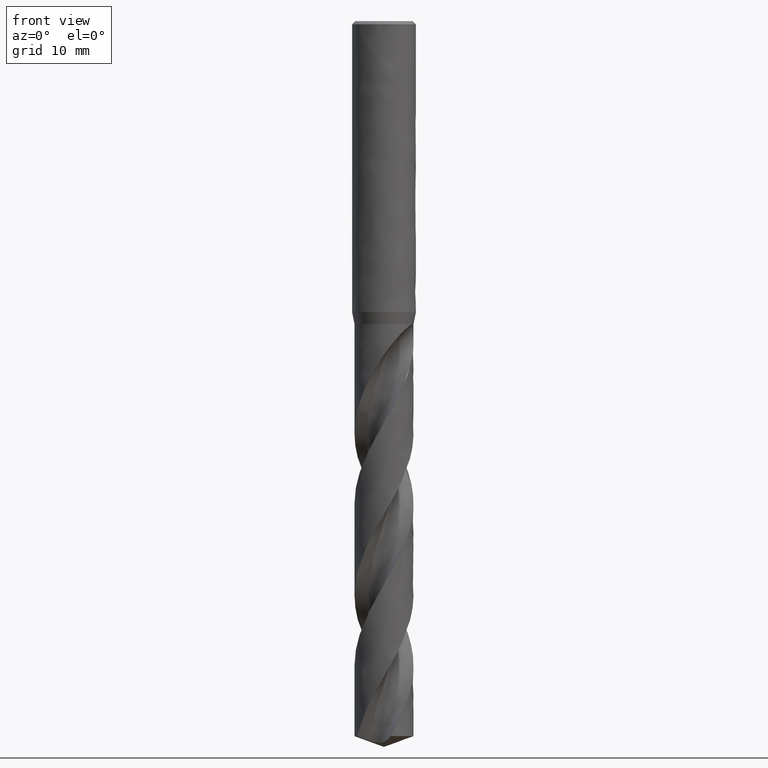
[diagram: clean part render]
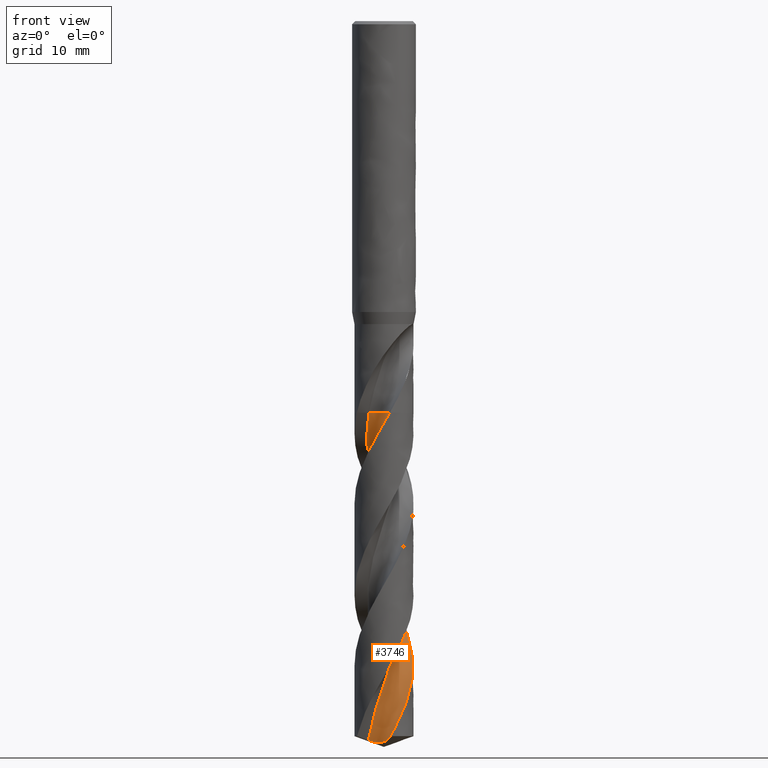
[diagram: same view with one face highlighted and labeled with its STEP entity id]
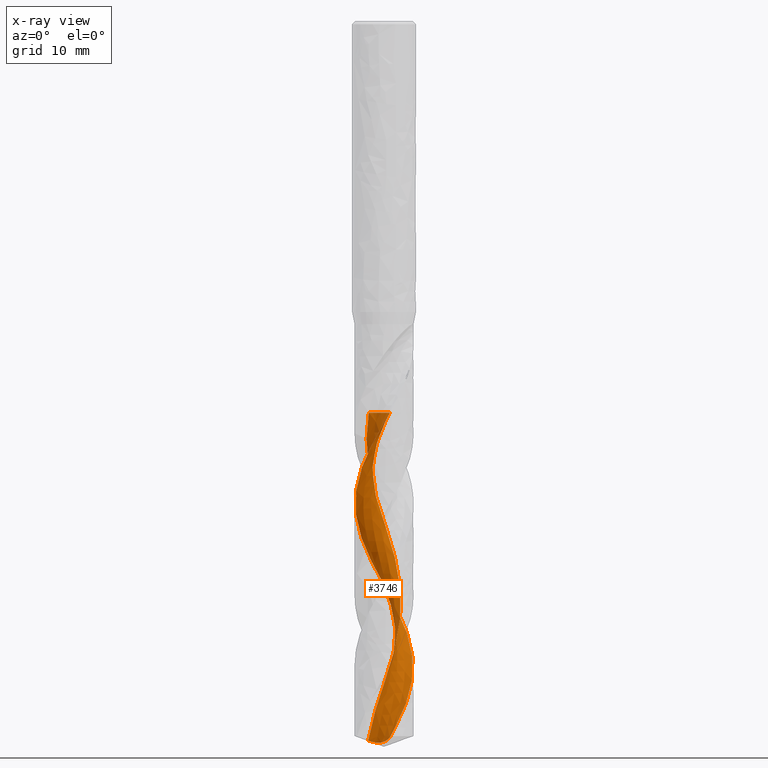
[diagram: x-ray of the same camera — body ghosted, the highlighted face saturated]
A machine part, front view. The second image highlights one B-rep face of the part: STEP entity #3746.
The next image is the same camera in x-ray: the body ghosted, the highlighted face saturated — about 0% of this face is hidden behind the body in this view.
In plain terms, the highlighted face is a freeform B-spline surface patch.
Its self-contained STEP definition (entity closure, byte-faithful):
#1965 = VERTEX_POINT('', #1966);
#1966 = CARTESIAN_POINT('', (-1.90183891064219, -1.13586932365929, -49.1));
#1972 = EDGE_CURVE('', #1965, #1973, #1975, .T.);
#1973 = VERTEX_POINT('', #1974);
#1974 = CARTESIAN_POINT('', (0.72714358249177, -3.62784539505765, -49.1));
#1975 = B_SPLINE_CURVE_WITH_KNOTS('', 3, (#1976, #1977, #1978, #1979, #1980, #1981, #1982, #1983, #1984, #1985, #1986, #1987, #1988, #1989, #1990, #1991, #1992, #1993, #1994, #1995, #1996, #1997, #1998, #1999, #2000, #2001, #2002, #2003, #2004, #2005, #2006, #2007, #2008, #2009, #2010, #2011, #2012, #2013, #2014, #2015, #2016, #2017, #2018, #2019, #2020, #2021, #2022, #2023, #2024, #2025, #2026, #2027, #2028, #2029, #2030, #2031, #2032, #2033, #2034, #2035, #2036, #2037, #2038, #2039, #2040, #2041, #2042, #2043, #2044, #2045, #2046, #2047, #2048), .UNSPECIFIED., .F., .U., (4, 3, 3, 3, 3, 3, 3, 3, 3, 3, 3, 3, 3, 3, 3, 3, 3, 3, 3, 3, 3, 3, 3, 3, 4), (0., 0.198131175392014, 0.396054144535818, 0.593773612337969, 0.791293336766626, 0.988616195694019, 1.1857442372197, 1.38267871536812, 1.5794201124808, 1.77596814913478, 1.97232178198284, 2.10329023730551, 2.12922146834169, 2.15518577085952, 2.353290731999, 2.55118812703353, 2.74888253870221, 2.94637761210929, 3.14367611938441, 3.34078000809429, 3.53769043522236, 3.73440778797182, 3.93093169216719, 4.12726100859794, 4.23516525426969), .UNSPECIFIED.);
#1976 = CARTESIAN_POINT('', (-1.90183891064219, -1.13586932365929, -49.1));
#1977 = CARTESIAN_POINT('', (-1.83705280506126, -1.12304223697551, -49.1));
#1978 = CARTESIAN_POINT('', (-1.77162879221972, -1.11309902186006, -49.1));
#1979 = CARTESIAN_POINT('', (-1.705957085298, -1.10609898335135, -49.1));
#1980 = CARTESIAN_POINT('', (-1.64035438952349, -1.09910630083674, -49.1));
#1981 = CARTESIAN_POINT('', (-1.57437430080287, -1.0950367198774, -49.1));
#1982 = CARTESIAN_POINT('', (-1.50840952354241, -1.09391446205907, -49.1));
#1983 = CARTESIAN_POINT('', (-1.44251257024767, -1.09279335812891, -49.1));
#1984 = CARTESIAN_POINT('', (-1.37650036249361, -1.09461128689216, -49.1));
#1985 = CARTESIAN_POINT('', (-1.31076498953027, -1.09935745049266, -49.1));
#1986 = CARTESIAN_POINT('', (-1.24509602482354, -1.10409881934665, -49.1));
#1987 = CARTESIAN_POINT('', (-1.17957351544245, -1.11177187100981, -49.1));
#1988 = CARTESIAN_POINT('', (-1.11458585723406, -1.12233112216003, -49.1));
#1989 = CARTESIAN_POINT('', (-1.04966297143231, -1.13287984903336, -49.1));
#1990 = CARTESIAN_POINT('', (-0.985145780865046, -1.14632982551928, -49.1));
#1991 = CARTESIAN_POINT('', (-0.921415961347195, -1.16260148320059, -49.1));
#1992 = CARTESIAN_POINT('', (-0.857749062455559, -1.17885707582949, -49.1));
#1993 = CARTESIAN_POINT('', (-0.794742615462946, -1.19796077750074, -49.1));
#1994 = CARTESIAN_POINT('', (-0.732768624247368, -1.21979979577093, -49.1));
#1995 = CARTESIAN_POINT('', (-0.670855486347987, -1.24161736993759, -49.1));
#1996 = CARTESIAN_POINT('', (-0.609851104028112, -1.26620775625234, -49.1));
#1997 = CARTESIAN_POINT('', (-0.550114954585282, -1.2934260522462, -49.1));
#1998 = CARTESIAN_POINT('', (-0.490437372426931, -1.32061766252799, -49.1));
#1999 = CARTESIAN_POINT('', (-0.431908485852878, -1.35048535336914, -49.1));
#2000 = CARTESIAN_POINT('', (-0.374872509979698, -1.3828534694431, -49.1));
#2001 = CARTESIAN_POINT('', (-0.317892589937263, -1.41518977363678, -49.1));
#2002 = CARTESIAN_POINT('', (-0.262291105066224, -1.45008487842868, -49.1));
#2003 = CARTESIAN_POINT('', (-0.208394412596436, -1.48733396429351, -49.1));
#2004 = CARTESIAN_POINT('', (-0.154551028835915, -1.52454620743946, -49.1));
#2005 = CARTESIAN_POINT('', (-0.102303870896427, -1.56418046668665, -49.1));
#2006 = CARTESIAN_POINT('', (-0.0519590020670209, -1.60600456497086, -49.1));
#2007 = CARTESIAN_POINT('', (-0.0183788252789887, -1.63390136254009, -49.1));
#2008 = CARTESIAN_POINT('', (0.0143923960344724, -1.66280162208258, -49.1));
#2009 = CARTESIAN_POINT('', (0.0462691847600613, -1.69262996310715, -49.1));
#2010 = CARTESIAN_POINT('', (0.0525806616046054, -1.69853585548886, -49.1));
#2011 = CARTESIAN_POINT('', (0.0588577542345861, -1.70447870913471, -49.1));
#2012 = CARTESIAN_POINT('', (0.0650998204049517, -1.71045791599752, -49.1));
#2013 = CARTESIAN_POINT('', (0.0713498474151432, -1.71644474846167, -49.1));
#2014 = CARTESIAN_POINT('', (0.077564972130027, -1.72246823150455, -49.1));
#2015 = CARTESIAN_POINT('', (0.0837445570218338, -1.72852774725639, -49.1));
#2016 = CARTESIAN_POINT('', (0.130894154974988, -1.77476123000522, -49.1));
#2017 = CARTESIAN_POINT('', (0.176023760110291, -1.82314846383146, -49.1));
#2018 = CARTESIAN_POINT('', (0.218864273769271, -1.87340092549918, -49.1));
#2019 = CARTESIAN_POINT('', (0.261659900927163, -1.92360073473622, -49.1));
#2020 = CARTESIAN_POINT('', (0.302256166961163, -1.97576147737417, -49.1));
#2021 = CARTESIAN_POINT('', (0.340411510828305, -2.02957277995692, -49.1));
#2022 = CARTESIAN_POINT('', (0.378527718757744, -2.08332888828451, -49.1));
#2023 = CARTESIAN_POINT('', (0.41428350385439, -2.13883862330547, -49.1));
#2024 = CARTESIAN_POINT('', (0.447466543099706, -2.19577236019223, -49.1));
#2025 = CARTESIAN_POINT('', (0.480616123385299, -2.25264868993207, -49.1));
#2026 = CARTESIAN_POINT('', (0.511263669896952, -2.31105855486791, -49.1));
#2027 = CARTESIAN_POINT('', (0.539227559352313, -2.37065580685417, -49.1));
#2028 = CARTESIAN_POINT('', (0.567163616449682, -2.43019374191117, -49.1));
#2029 = CARTESIAN_POINT('', (0.592476468653099, -2.49103413198755, -49.1));
#2030 = CARTESIAN_POINT('', (0.615016405126227, -2.55281714147063, -49.1));
#2031 = CARTESIAN_POINT('', (0.637534107826999, -2.61453920715424, -49.1));
#2032 = CARTESIAN_POINT('', (0.657328700556203, -2.6773235327564, -49.1));
#2033 = CARTESIAN_POINT('', (0.674283340293188, -2.74079951654997, -49.1));
#2034 = CARTESIAN_POINT('', (0.691221338697301, -2.80421319734023, -49.1));
#2035 = CARTESIAN_POINT('', (0.705358245133915, -2.86844176460755, -49.1));
#2036 = CARTESIAN_POINT('', (0.71661077611817, -2.93310683437287, -49.1));
#2037 = CARTESIAN_POINT('', (0.727852273784082, -2.99770849882064, -49.1));
#2038 = CARTESIAN_POINT('', (0.736237103467275, -3.06287248209454, -49.1));
#2039 = CARTESIAN_POINT('', (0.741715965054309, -3.12821564084054, -49.1));
#2040 = CARTESIAN_POINT('', (0.747189438820506, -3.19349454221726, -49.1));
#2041 = CARTESIAN_POINT('', (0.749773379779972, -3.25908001661995, -49.1));
#2042 = CARTESIAN_POINT('', (0.749452625009428, -3.32458719940473, -49.1));
#2043 = CARTESIAN_POINT('', (0.749132187833602, -3.39002952037885, -49.1));
#2044 = CARTESIAN_POINT('', (0.745912189610335, -3.45552152259136, -49.1));
#2045 = CARTESIAN_POINT('', (0.739811488389775, -3.52067964947573, -49.1));
#2046 = CARTESIAN_POINT('', (0.736458491622705, -3.55649110473195, -49.1));
#2047 = CARTESIAN_POINT('', (0.732233210238253, -3.59223410004744, -49.1));
#2048 = CARTESIAN_POINT('', (0.727143494629635, -3.62784538250002, -49.1));
#3644 = EDGE_CURVE('', #1973, #3645, #3647, .T.);
#3645 = VERTEX_POINT('', #3646);
#3646 = CARTESIAN_POINT('', (-0.250700221443543, -3.69149690491109, -50.8047274931118));
#3647 = B_SPLINE_CURVE_WITH_KNOTS('', 3, (#3648, #3649, #3650, #3651, #3652, #3653, #3654, #3655, #3656, #3657, #3658, #3659, #3660, #3661, #3662, #3663, #3664, #3665, #3666), .UNSPECIFIED., .F., .U., (4, 3, 3, 3, 3, 3, 4), (4.43471449933253, 4.82439352692806, 5.4881293337976, 5.78341993079446, 5.87097239223266, 5.92935237540858, 6.4023368117242), .UNSPECIFIED.);
#3648 = CARTESIAN_POINT('', (0.72714358249177, -3.62784539505765, -49.1));
#3649 = CARTESIAN_POINT('', (0.663521049296479, -3.64059751420194, -49.2125244443034));
#3650 = CARTESIAN_POINT('', (0.599551793029408, -3.65167729280187, -49.3250826453598));
#3651 = CARTESIAN_POINT('', (0.535354611803831, -3.66106479587819, -49.4376117107044));
#3652 = CARTESIAN_POINT('', (0.426008291211655, -3.67705442192326, -49.6292811737587));
#3653 = CARTESIAN_POINT('', (0.31591837745099, -3.68814406172143, -49.8209990337498));
#3654 = CARTESIAN_POINT('', (0.205585509098997, -3.69428404409413, -50.0126717438922));
#3655 = CARTESIAN_POINT('', (0.156499324163911, -3.69701567171105, -50.0979453548985));
#3656 = CARTESIAN_POINT('', (0.107357422287585, -3.69876885430508, -50.1832238632673));
#3657 = CARTESIAN_POINT('', (0.0582040330285359, -3.69954217309915, -50.2684990083998));
#3658 = CARTESIAN_POINT('', (0.043630252957559, -3.69977145897749, -50.293782742226));
#3659 = CARTESIAN_POINT('', (0.0290551830907759, -3.69991462555224, -50.3190666602561));
#3660 = CARTESIAN_POINT('', (0.0144799717314964, -3.6999716661643, -50.344350544332));
#3661 = CARTESIAN_POINT('', (0.00476122048267163, -3.70000970084566, -50.3612098387794));
#3662 = CARTESIAN_POINT('', (-0.00495764072340317, -3.70000944256536, -50.3780691997148));
#3663 = CARTESIAN_POINT('', (-0.0146762717132745, -3.69997089272991, -50.3949285623163));
#3664 = CARTESIAN_POINT('', (-0.0934149240806846, -3.69965856869008, -50.5315201761349));
#3665 = CARTESIAN_POINT('', (-0.1721495020004, -3.69683151124185, -50.6681314890017));
#3666 = CARTESIAN_POINT('', (-0.250700221443463, -3.69149690491109, -50.8047274931116));
#3746 = ADVANCED_FACE('', (#3747), #4015, .T.);
#3747 = FACE_OUTER_BOUND('', #3748, .T.);
#3748 = EDGE_LOOP('', (#3749, #3750, #3819, #3939, #3951, #4014));
#3749 = ORIENTED_EDGE('', *, *, #1972, .F.);
#3750 = ORIENTED_EDGE('', *, *, #3751, .F.);
#3751 = EDGE_CURVE('', #3752, #1965, #3754, .T.);
#3752 = VERTEX_POINT('', #3753);
#3753 = CARTESIAN_POINT('', (-1.96964819562362, -1.01333385685226, -90.1937948789721));
#3754 = B_SPLINE_CURVE_WITH_KNOTS('', 3, (#3755, #3756, #3757, #3758, #3759, #3760, #3761, #3762, #3763, #3764, #3765, #3766, #3767, #3768, #3769, #3770, #3771, #3772, #3773, #3774, #3775, #3776, #3777, #3778, #3779, #3780, #3781, #3782, #3783, #3784, #3785, #3786, #3787, #3788, #3789, #3790, #3791, #3792, #3793, #3794, #3795, #3796, #3797, #3798, #3799, #3800, #3801, #3802, #3803, #3804, #3805, #3806, #3807, #3808, #3809, #3810, #3811, #3812, #3813, #3814, #3815, #3816, #3817, #3818), .UNSPECIFIED., .F., .U., (4, 1, 1, 1, 1, 1, 1, 1, 1, 1, 1, 1, 1, 1, 1, 1, 1, 1, 1, 1, 1, 1, 1, 1, 1, 1, 1, 1, 1, 1, 1, 1, 1, 1, 1, 1, 1, 1, 1, 1, 1, 1, 1, 1, 1, 1, 1, 1, 1, 1, 1, 1, 1, 1, 1, 1, 1, 1, 1, 1, 1, 4), (0.856205121027864, 1.36076923076923, 2.04115384615385, 2.72153846153846, 3.40192307692308, 4.08230769230769, 4.76269230769231, 5.44307692307692, 6.12346153846154, 6.80384615384615, 7.48423076923077, 8.16461538461538, 8.845, 9.52538461538462, 10.2057692307692, 10.8861538461538, 11.5665384615385, 12.2469230769231, 12.9273076923077, 13.6076923076923, 14.2880769230769, 14.9684615384615, 15.6488461538462, 16.3292307692308, 17.0096153846154, 17.69, 18.3703846153846, 19.0507692307692, 19.7311538461538, 20.4115384615385, 21.0919230769231, 21.7723076923077, 22.4526923076923, 23.1330769230769, 23.8134615384615, 24.4938461538462, 25.1742307692308, 25.8546153846154, 26.535, 27.2153846153846, 27.8957692307692, 28.5761538461538, 29.2565384615385, 29.9369230769231, 30.6173076923077, 31.2976923076923, 31.9780769230769, 32.6584615384615, 33.3388461538462, 34.0192307692308, 34.6996153846154, 35.38, 36.0603846153846, 36.7407692307692, 37.4211538461539, 38.1015384615385, 38.7819230769231, 39.4623076923077, 40.1426923076923, 40.8230769230769, 41.5034615384615, 41.95), .UNSPECIFIED.);
#3755 = CARTESIAN_POINT('', (-1.96964819562362, -1.01333385685226, -90.1937948789721));
#3756 = CARTESIAN_POINT('', (-1.94200330542687, -1.06381329460173, -90.0256068423917));
#3757 = CARTESIAN_POINT('', (-1.8725677050328, -1.17973516900651, -89.6306239340164));
#3758 = CARTESIAN_POINT('', (-1.74736486689418, -1.3512473719814, -89.0088461538462));
#3759 = CARTESIAN_POINT('', (-1.59197557702663, -1.52320136039059, -88.3284615384616));
#3760 = CARTESIAN_POINT('', (-1.41996403025922, -1.67765990639244, -87.6480769230769));
#3761 = CARTESIAN_POINT('', (-1.23326405044194, -1.81304916863214, -86.9676923076923));
#3762 = CARTESIAN_POINT('', (-1.03395392572099, -1.92800445844749, -86.2873076923077));
#3763 = CARTESIAN_POINT('', (-0.824235439556281, -2.02138420468633, -85.6069230769231));
#3764 = CARTESIAN_POINT('', (-0.606409954256319, -2.09228043388597, -84.9265384615385));
#3765 = CARTESIAN_POINT('', (-0.382854095457716, -2.14002711012119, -84.2461538461538));
#3766 = CARTESIAN_POINT('', (-0.155994669157476, -2.16420588182339, -83.5657692307692));
#3767 = CARTESIAN_POINT('', (0.0717167691886188, -2.16464929594036, -82.8853846153846));
#3768 = CARTESIAN_POINT('', (0.297829481859909, -2.14144143421432, -82.205));
#3769 = CARTESIAN_POINT('', (0.519918984868642, -2.09491598656038, -81.5246153846154));
#3770 = CARTESIAN_POINT('', (0.735612103161015, -2.02565179204047, -80.8442307692308));
#3771 = CARTESIAN_POINT('', (0.942611396568502, -1.9344659048626, -80.1638461538462));
#3772 = CARTESIAN_POINT('', (1.13871871662639, -1.82240426587657, -79.4834615384615));
#3773 = CARTESIAN_POINT('', (1.32185766378914, -1.69073008301955, -78.8030769230769));
#3774 = CARTESIAN_POINT('', (1.49009472646196, -1.54091004580556, -78.1226923076923));
#3775 = CARTESIAN_POINT('', (1.64165889704557, -1.3745985193511, -77.4423076923077));
#3776 = CARTESIAN_POINT('', (1.77495957584328, -1.19361988233452, -76.7619230769231));
#3777 = CARTESIAN_POINT('', (1.88860259101834, -0.999949190556013, -76.0815384615385));
#3778 = CARTESIAN_POINT('', (1.98140418165746, -0.79569136324921, -75.4011538461538));
#3779 = CARTESIAN_POINT('', (2.05240281121247, -0.583059102864638, -74.7207692307692));
#3780 = CARTESIAN_POINT('', (2.10086869996708, -0.364349770588559, -74.0403846153846));
#3781 = CARTESIAN_POINT('', (2.1263109875126, -0.141921449283204, -73.36));
#3782 = CARTESIAN_POINT('', (2.12848245930961, 0.0818315672385308, -72.6796153846154));
#3783 = CARTESIAN_POINT('', (2.10738179505253, 0.304503614715725, -71.9992307692308));
#3784 = CARTESIAN_POINT('', (2.0632533205265, 0.523702582144858, -71.3188461538461));
#3785 = CARTESIAN_POINT('', (1.99658426873576, 0.737074671732543, -70.6384615384615));
#3786 = CARTESIAN_POINT('', (1.90809958007306, 0.942328750062583, -69.9580769230769));
#3787 = CARTESIAN_POINT('', (1.79875429497734, 1.137260049648, -69.2776923076923));
#3788 = CARTESIAN_POINT('', (1.66972361567961, 1.31977298648215, -68.5973076923077));
#3789 = CARTESIAN_POINT('', (1.52239073605888, 1.4879028678261, -67.9169230769231));
#3790 = CARTESIAN_POINT('', (1.35833256012096, 1.63983627519385, -67.2365384615385));
#3791 = CARTESIAN_POINT('', (1.17930344998111, 1.77392992022567, -66.5561538461538));
#3792 = CARTESIAN_POINT('', (0.987217163294125, 1.88872778576047, -65.8757692307692));
#3793 = CARTESIAN_POINT('', (0.78412715766146, 1.9829763808002, -65.1953846153846));
#3794 = CARTESIAN_POINT('', (0.572205455494487, 2.05563795605952, -64.515));
#3795 = CARTESIAN_POINT('', (0.353720276981208, 2.10590154625236, -63.8346153846154));
#3796 = CARTESIAN_POINT('', (0.131012661058845, 2.13319172601395, -63.1542307692308));
#3797 = CARTESIAN_POINT('', (-0.0935276954774158, 2.13717498820797, -62.4738461538462));
#3798 = CARTESIAN_POINT('', (-0.317487142497536, 2.11776367613167, -61.7934615384615));
#3799 = CARTESIAN_POINT('', (-0.538453080563795, 2.07511742460602, -61.1130769230769));
#3800 = CARTESIAN_POINT('', (-0.754039016706992, 2.0096420889129, -60.4326923076923));
#3801 = CARTESIAN_POINT('', (-0.961909422880157, 1.92198616480523, -59.7523076923077));
#3802 = CARTESIAN_POINT('', (-1.15980414903656, 1.8130347271487, -59.0719230769231));
#3803 = CARTESIAN_POINT('', (-1.34556214613322, 1.68390093893882, -58.3915384615385));
#3804 = CARTESIAN_POINT('', (-1.51714426004205, 1.53591520624412, -57.7111538461538));
#3805 = CARTESIAN_POINT('', (-1.67265486529434, 1.37061207787407, -57.0307692307692));
#3806 = CARTESIAN_POINT('', (-1.81036211783138, 1.18971501090454, -56.3503846153846));
#3807 = CARTESIAN_POINT('', (-1.92871661804353, 0.995119144921287, -55.67));
#3808 = CARTESIAN_POINT('', (-2.02636829061218, 0.788872246828582, -54.9896153846154));
#3809 = CARTESIAN_POINT('', (-2.10218130084206, 0.573154011332664, -54.3092307692308));
#3810 = CARTESIAN_POINT('', (-2.15524685706284, 0.35025390264106, -53.6288461538461));
#3811 = CARTESIAN_POINT('', (-2.18489372455236, 0.122547800835147, -52.9484615384615));
#3812 = CARTESIAN_POINT('', (-2.19069646155466, -0.107526503420713, -52.2680769230769));
#3813 = CARTESIAN_POINT('', (-2.17248079900021, -0.337494040153583, -51.5876923076923));
#3814 = CARTESIAN_POINT('', (-2.13032789145969, -0.564869931579768, -50.9073076923077));
#3815 = CARTESIAN_POINT('', (-2.06457067392558, -0.787179385210572, -50.2269230769231));
#3816 = CARTESIAN_POINT('', (-1.98597659896718, -0.977394103765773, -49.6244871794872));
#3817 = CARTESIAN_POINT('', (-1.92681743609418, -1.09147418312796, -49.2488461538462));
#3818 = CARTESIAN_POINT('', (-1.90183891064219, -1.13586932365929, -49.1));
#3819 = ORIENTED_EDGE('', *, *, #3820, .T.);
#3820 = EDGE_CURVE('', #3752, #3821, #3823, .T.);
#3821 = VERTEX_POINT('', #3822);
#3822 = CARTESIAN_POINT('', (0.797565403026925, -3.61301666587555, -89.6533101332151));
#3823 = B_SPLINE_CURVE_WITH_KNOTS('', 3, (#3824, #3825, #3826, #3827, #3828, #3829, #3830, #3831, #3832, #3833, #3834, #3835, #3836, #3837, #3838, #3839, #3840, #3841, #3842, #3843, #3844, #3845, #3846, #3847, #3848, #3849, #3850, #3851, #3852, #3853, #3854, #3855, #3856, #3857, #3858, #3859, #3860, #3861, #3862, #3863, #3864, #3865, #3866, #3867, #3868, #3869, #3870, #3871, #3872, #3873, #3874, #3875, #3876, #3877, #3878, #3879, #3880, #3881, #3882, #3883, #3884, #3885, #3886, #3887, #3888, #3889, #3890, #3891, #3892, #3893, #3894, #3895, #3896, #3897, #3898, #3899, #3900, #3901, #3902, #3903, #3904, #3905, #3906, #3907, #3908, #3909, #3910, #3911, #3912, #3913, #3914, #3915, #3916, #3917, #3918, #3919, #3920, #3921, #3922, #3923, #3924, #3925, #3926, #3927, #3928, #3929, #3930, #3931, #3932, #3933, #3934, #3935, #3936, #3937, #3938), .UNSPECIFIED., .F., .U., (4, 3, 3, 3, 3, 3, 3, 3, 3, 3, 3, 3, 3, 3, 3, 3, 3, 3, 3, 3, 3, 3, 3, 3, 3, 3, 3, 3, 3, 3, 3, 3, 3, 3, 3, 3, 3, 3, 4), (0., 0.131522576885587, 0.262940479813008, 0.394218804082495, 0.525321578292067, 0.656219282596087, 0.74349606814377, 0.830714631240533, 0.917885118119583, 1.00502389366206, 1.092152793087, 1.17929689218938, 1.26648096892697, 1.35372545059808, 1.44104305181593, 1.52843716871898, 1.61590240523902, 1.70342677534018, 1.79099463556784, 1.87858943249351, 1.96619571923696, 2.09759417106111, 2.15598514353406, 2.28809505194536, 2.31408431359249, 2.44655236137781, 2.57875583305147, 2.71073619484209, 2.84252859637483, 2.97416192987517, 3.1056595118033, 3.23703994129515, 3.36831793216571, 3.56494931918041, 3.76131448524956, 3.95744387230091, 4.15335711690405, 4.34906563259871, 4.41484012946485), .UNSPECIFIED.);
#3824 = CARTESIAN_POINT('', (-1.96964819562362, -1.01333385685226, -90.1937948789721));
#3825 = CARTESIAN_POINT('', (-1.9295659448708, -1.00328682890452, -90.2084404011042));
#3826 = CARTESIAN_POINT('', (-1.88902360291432, -0.994760569536945, -90.222960967566));
#3827 = CARTESIAN_POINT('', (-1.84816664796933, -0.987825034830601, -90.2372658095949));
#3828 = CARTESIAN_POINT('', (-1.8073422095648, -0.980895019860009, -90.2515592669288));
#3829 = CARTESIAN_POINT('', (-1.76614703332691, -0.975543852228903, -90.2656573300057));
#3830 = CARTESIAN_POINT('', (-1.72473620358057, -0.971828647861394, -90.2794523739462));
#3831 = CARTESIAN_POINT('', (-1.68336935618299, -0.968117389404055, -90.2932327662017));
#3832 = CARTESIAN_POINT('', (-1.64172689671684, -0.966033538627578, -90.3067310204601));
#3833 = CARTESIAN_POINT('', (-1.59997305357038, -0.965617717730334, -90.3198204203375));
#3834 = CARTESIAN_POINT('', (-1.55827504515296, -0.965202452883632, -90.3328923166022));
#3835 = CARTESIAN_POINT('', (-1.51640177107295, -0.966450555228897, -90.3455765431708));
#3836 = CARTESIAN_POINT('', (-1.47452618938427, -0.969381350513974, -90.3577263135414));
#3837 = CARTESIAN_POINT('', (-1.43271610914384, -0.972307561472625, -90.3698570793389));
#3838 = CARTESIAN_POINT('', (-1.39083589568067, -0.976916495439039, -90.3814744323887));
#3839 = CARTESIAN_POINT('', (-1.34906681154988, -0.983199937675393, -90.3924134891879));
#3840 = CARTESIAN_POINT('', (-1.32121703818992, -0.987389458366221, -90.3997071672507));
#3841 = CARTESIAN_POINT('', (-1.29339048778453, -0.99232646581234, -90.4067058932792));
#3842 = CARTESIAN_POINT('', (-1.26564296836305, -0.998000009471486, -90.4133576425083));
#3843 = CARTESIAN_POINT('', (-1.23791395934589, -1.00366976830268, -90.4200049543473));
#3844 = CARTESIAN_POINT('', (-1.21024205688341, -1.01007962347782, -90.4263108327649));
#3845 = CARTESIAN_POINT('', (-1.18268432633407, -1.01721060301523, -90.4322228103333));
#3846 = CARTESIAN_POINT('', (-1.155141786031, -1.02433765184669, -90.4381315291285));
#3847 = CARTESIAN_POINT('', (-1.12769100471043, -1.03219086420824, -90.4436513644034));
#3848 = CARTESIAN_POINT('', (-1.10038975146684, -1.04074236143379, -90.4487319918965));
#3849 = CARTESIAN_POINT('', (-1.07309843001625, -1.04929074775086, -90.4538107711322));
#3850 = CARTESIAN_POINT('', (-1.04593398962064, -1.05854400577845, -90.4584546263553));
#3851 = CARTESIAN_POINT('', (-1.01895396019056, -1.06846490161294, -90.4626186354169));
#3852 = CARTESIAN_POINT('', (-0.991976988617796, -1.07838467303488, -90.4667821725388));
#3853 = CARTESIAN_POINT('', (-0.965161904740652, -1.08898018293032, -90.4704692137904));
#3854 = CARTESIAN_POINT('', (-0.938564607870624, -1.1002051389251, -90.4736438104245));
#3855 = CARTESIAN_POINT('', (-0.911962671089658, -1.11143205311872, -90.4768189608686));
#3856 = CARTESIAN_POINT('', (-0.885556566737875, -1.12329785295074, -90.4794839378235));
#3857 = CARTESIAN_POINT('', (-0.859398799057968, -1.13574846913895, -90.4816150337129));
#3858 = CARTESIAN_POINT('', (-0.833229031418169, -1.1482047970873, -90.4837471072493));
#3859 = CARTESIAN_POINT('', (-0.807286699034172, -1.16125639360555, -90.4853464463869));
#3860 = CARTESIAN_POINT('', (-0.781619026028209, -1.17484370798849, -90.4864038167861));
#3861 = CARTESIAN_POINT('', (-0.75593356933812, -1.18844043625585, -90.4874619197776));
#3862 = CARTESIAN_POINT('', (-0.730503376977191, -1.20258390253526, -90.4879781545187));
#3863 = CARTESIAN_POINT('', (-0.705368771973155, -1.21721211250043, -90.4879583706491));
#3864 = CARTESIAN_POINT('', (-0.680213101672031, -1.23185258235943, -90.4879385701987));
#3865 = CARTESIAN_POINT('', (-0.655335479698826, -1.24698889187125, -90.4873819924131));
#3866 = CARTESIAN_POINT('', (-0.630768348728278, -1.26255985634144, -90.4863083819656));
#3867 = CARTESIAN_POINT('', (-0.6061796897859, -1.27814446551784, -90.4852338307222));
#3868 = CARTESIAN_POINT('', (-0.581886035985513, -1.29417444722751, -90.4836408765009));
#3869 = CARTESIAN_POINT('', (-0.557911820718943, -1.31059229868691, -90.4815604900104));
#3870 = CARTESIAN_POINT('', (-0.533918095706547, -1.32702351067158, -90.4794784105423));
#3871 = CARTESIAN_POINT('', (-0.510230409765674, -1.34385258391467, -90.4769071666591));
#3872 = CARTESIAN_POINT('', (-0.486865867267254, -1.36102774533069, -90.4738854773401));
#3873 = CARTESIAN_POINT('', (-0.4634855284465, -1.37821451854634, -90.4708617451145));
#3874 = CARTESIAN_POINT('', (-0.440416912976524, -1.39575643653708, -90.4673856805458));
#3875 = CARTESIAN_POINT('', (-0.417671041379063, -1.41360851663139, -90.4635002030861));
#3876 = CARTESIAN_POINT('', (-0.394913867548498, -1.43146946727479, -90.4596127949652));
#3877 = CARTESIAN_POINT('', (-0.372469793885491, -1.44964862669595, -90.4553140768171));
#3878 = CARTESIAN_POINT('', (-0.350345246257309, -1.46810797682734, -90.4506481100883));
#3879 = CARTESIAN_POINT('', (-0.328213892910037, -1.48657300522857, -90.4459807080642));
#3880 = CARTESIAN_POINT('', (-0.306393947394375, -1.50532529034361, -90.4409442340559));
#3881 = CARTESIAN_POINT('', (-0.284888696691452, -1.52433331686883, -90.4355816007181));
#3882 = CARTESIAN_POINT('', (-0.263380625142765, -1.54334383667867, -90.4302182639632));
#3883 = CARTESIAN_POINT('', (-0.242180396638642, -1.56261627892224, -90.4245270553302));
#3884 = CARTESIAN_POINT('', (-0.22128940778594, -1.58212481099789, -90.4185482471429));
#3885 = CARTESIAN_POINT('', (-0.189955542439505, -1.61138516441988, -90.4095807840901));
#3886 = CARTESIAN_POINT('', (-0.159301573306614, -1.64119069189462, -90.3999626659805));
#3887 = CARTESIAN_POINT('', (-0.12932879880658, -1.67147357223323, -90.3898150189282));
#3888 = CARTESIAN_POINT('', (-0.116009467973736, -1.68493070820178, -90.385305597611));
#3889 = CARTESIAN_POINT('', (-0.10282234666729, -1.69848463521571, -90.3806906203706));
#3890 = CARTESIAN_POINT('', (-0.089767521703849, -1.71213054875753, -90.3759795109779));
#3891 = CARTESIAN_POINT('', (-0.060230905730469, -1.74300450601234, -90.3653205990944));
#3892 = CARTESIAN_POINT('', (-0.0313615676939223, -1.77435894860245, -90.3541671643));
#3893 = CARTESIAN_POINT('', (-0.00316194474968364, -1.80614810518126, -90.3426148436637));
#3894 = CARTESIAN_POINT('', (0.00238561324851559, -1.81240181255115, -90.3403422186407));
#3895 = CARTESIAN_POINT('', (0.00790752846210525, -1.81867269012821, -90.3380539900539));
#3896 = CARTESIAN_POINT('', (0.0134037681150238, -1.82496043807431, -90.3357508062681));
#3897 = CARTESIAN_POINT('', (0.0414182668286716, -1.85700927834897, -90.3240114092843));
#3898 = CARTESIAN_POINT('', (0.0687724975870911, -1.88950343191998, -90.3118818807107));
#3899 = CARTESIAN_POINT('', (0.0954598147561452, -1.92240793241706, -90.2994386218116));
#3900 = CARTESIAN_POINT('', (0.122093829814046, -1.95524671333161, -90.2870202156156));
#3901 = CARTESIAN_POINT('', (0.148073356387858, -1.98850640048546, -90.2742846028326));
#3902 = CARTESIAN_POINT('', (0.173387649139769, -2.02215768324728, -90.2612941889261));
#3903 = CARTESIAN_POINT('', (0.198659220858538, -2.05575217526324, -90.2483256979668));
#3904 = CARTESIAN_POINT('', (0.22327640880296, -2.08974851817691, -90.2350986799049));
#3905 = CARTESIAN_POINT('', (0.247224398715135, -2.12412059473879, -90.2216644653502));
#3906 = CARTESIAN_POINT('', (0.271138283020244, -2.15844372019698, -90.2082493831756));
#3907 = CARTESIAN_POINT('', (0.294392672266181, -2.19315281607764, -90.1946231719328));
#3908 = CARTESIAN_POINT('', (0.316968929898264, -2.22822326261616, -90.180828549631));
#3909 = CARTESIAN_POINT('', (0.339517938911773, -2.26325138056168, -90.1670505768736));
#3910 = CARTESIAN_POINT('', (0.361397665238779, -2.29865127917651, -90.1531000679708));
#3911 = CARTESIAN_POINT('', (0.382585958021276, -2.33439863616461, -90.1390131199362));
#3912 = CARTESIAN_POINT('', (0.403752399620785, -2.37010912741525, -90.1249406995694));
#3913 = CARTESIAN_POINT('', (0.424235601546306, -2.40617786555732, -90.1107275186981));
#3914 = CARTESIAN_POINT('', (0.444010199588413, -2.4425799357522, -90.0964046346265));
#3915 = CARTESIAN_POINT('', (0.463767180254573, -2.47894957499932, -90.0820945109475));
#3916 = CARTESIAN_POINT('', (0.482823228681467, -2.51566383072955, -90.0676701518115));
#3917 = CARTESIAN_POINT('', (0.501150037694293, -2.55269649208402, -90.0531588235424));
#3918 = CARTESIAN_POINT('', (0.51946255711273, -2.58970027870587, -90.0386588098997));
#3919 = CARTESIAN_POINT('', (0.537053071512917, -2.62703437324524, -90.0240670626608));
#3920 = CARTESIAN_POINT('', (0.55389056936072, -2.6646706708237, -90.0094080463822));
#3921 = CARTESIAN_POINT('', (0.579110185640001, -2.72104323827292, -89.9874514131033));
#3922 = CARTESIAN_POINT('', (0.602657027664218, -2.77813151053288, -89.9653297350372));
#3923 = CARTESIAN_POINT('', (0.624416254835947, -2.83583018540064, -89.9431173938182));
#3924 = CARTESIAN_POINT('', (0.646146022000707, -2.89345074153053, -89.9209351260812));
#3925 = CARTESIAN_POINT('', (0.666110920246487, -2.95172826348926, -89.898643727317));
#3926 = CARTESIAN_POINT('', (0.684185314615486, -3.01054128079378, -89.8763119218494));
#3927 = CARTESIAN_POINT('', (0.702238006749629, -3.06928368030119, -89.8540069305632));
#3928 = CARTESIAN_POINT('', (0.718420782124585, -3.12861350130206, -89.8316413365957));
#3929 = CARTESIAN_POINT('', (0.732599041070807, -3.18838898180483, -89.809281758483));
#3930 = CARTESIAN_POINT('', (0.746761675007201, -3.24809858733142, -89.7869468215219));
#3931 = CARTESIAN_POINT('', (0.758937885458345, -3.30831204170459, -89.7645957112128));
#3932 = CARTESIAN_POINT('', (0.76898649941838, -3.36886287505069, -89.742295743953));
#3933 = CARTESIAN_POINT('', (0.779024612598992, -3.42935043290951, -89.7200190801098));
#3934 = CARTESIAN_POINT('', (0.786950104925226, -3.4902407762981, -89.697769094831));
#3935 = CARTESIAN_POINT('', (0.792618578277774, -3.55133800491954, -89.6756160998062));
#3936 = CARTESIAN_POINT('', (0.794523661362378, -3.57187180467897, -89.6681708330703));
#3937 = CARTESIAN_POINT('', (0.79617442934883, -3.59243412380993, -89.6607345810216));
#3938 = CARTESIAN_POINT('', (0.79756540302692, -3.61301666587555, -89.653310133215));
#3939 = ORIENTED_EDGE('', *, *, #3940, .F.);
#3940 = EDGE_CURVE('', #3941, #3821, #3943, .T.);
#3941 = VERTEX_POINT('', #3942);
#3942 = CARTESIAN_POINT('', (1.41393219844765, -3.41918056530991, -88.5110099822386));
#3943 = B_SPLINE_CURVE_WITH_KNOTS('', 3, (#3944, #3945, #3946, #3947, #3948, #3949, #3950), .UNSPECIFIED., .F., .U., (4, 3, 4), (0., 0.664246929424587, 1.31267997870112), .UNSPECIFIED.);
#3944 = CARTESIAN_POINT('', (1.41393219844772, -3.41918056530988, -88.5110099822385));
#3945 = CARTESIAN_POINT('', (1.31308546510435, -3.46088366950658, -88.7036642697644));
#3946 = CARTESIAN_POINT('', (1.2103755350959, -3.49812768253112, -88.896368876561));
#3947 = CARTESIAN_POINT('', (1.10625116080279, -3.53075181359749, -89.0890309324464));
#3948 = CARTESIAN_POINT('', (1.00460569955033, -3.56259925443653, -89.2771062382456));
#3949 = CARTESIAN_POINT('', (0.901567253655347, -3.59005848837932, -89.4652279249002));
#3950 = CARTESIAN_POINT('', (0.797565403026904, -3.61301666587555, -89.6533101332151));
#3951 = ORIENTED_EDGE('', *, *, #3952, .T.);
#3952 = EDGE_CURVE('', #3941, #3645, #3953, .T.);
#3953 = B_SPLINE_CURVE_WITH_KNOTS('', 3, (#3954, #3955, #3956, #3957, #3958, #3959, #3960, #3961, #3962, #3963, #3964, #3965, #3966, #3967, #3968, #3969, #3970, #3971, #3972, #3973, #3974, #3975, #3976, #3977, #3978, #3979, #3980, #3981, #3982, #3983, #3984, #3985, #3986, #3987, #3988, #3989, #3990, #3991, #3992, #3993, #3994, #3995, #3996, #3997, #3998, #3999, #4000, #4001, #4002, #4003, #4004, #4005, #4006, #4007, #4008, #4009, #4010, #4011, #4012, #4013), .UNSPECIFIED., .F., .U., (4, 1, 1, 1, 1, 1, 1, 1, 1, 1, 1, 1, 1, 1, 1, 1, 1, 1, 1, 1, 1, 1, 1, 1, 1, 1, 1, 1, 1, 1, 1, 1, 1, 1, 1, 1, 1, 1, 1, 1, 1, 1, 1, 1, 1, 1, 1, 1, 1, 1, 1, 1, 1, 1, 1, 1, 1, 4), (2.53899001776141, 2.72153846153846, 3.40192307692308, 4.08230769230769, 4.76269230769231, 5.44307692307692, 6.12346153846154, 6.80384615384615, 7.48423076923077, 8.16461538461538, 8.845, 9.52538461538462, 10.2057692307692, 10.8861538461538, 11.5665384615385, 12.2469230769231, 12.9273076923077, 13.6076923076923, 14.2880769230769, 14.9684615384615, 15.6488461538462, 16.3292307692308, 17.0096153846154, 17.69, 18.3703846153846, 19.0507692307692, 19.7311538461538, 20.4115384615385, 21.0919230769231, 21.7723076923077, 22.4526923076923, 23.1330769230769, 23.8134615384615, 24.4938461538462, 25.1742307692308, 25.8546153846154, 26.535, 27.2153846153846, 27.8957692307692, 28.5761538461538, 29.2565384615385, 29.9369230769231, 30.6173076923077, 31.2976923076923, 31.9780769230769, 32.6584615384615, 33.3388461538462, 34.0192307692308, 34.6996153846154, 35.38, 36.0603846153846, 36.7407692307692, 37.4211538461539, 38.1015384615385, 38.7819230769231, 39.4623076923077, 40.1426923076923, 40.2452725068882), .UNSPECIFIED.);
#3954 = CARTESIAN_POINT('', (1.41393219844767, -3.4191805653099, -88.5110099822386));
#3955 = CARTESIAN_POINT('', (1.44574641011641, -3.40512580154451, -88.4501605009796));
#3956 = CARTESIAN_POINT('', (1.59515651654502, -3.33660605525851, -88.1625161479257));
#3957 = CARTESIAN_POINT('', (1.85359318369381, -3.19669985197603, -87.6480769230769));
#3958 = CARTESIAN_POINT('', (2.17350541141202, -2.97762634951952, -86.9676923076923));
#3959 = CARTESIAN_POINT('', (2.4681922523145, -2.72703500895183, -86.2873076923077));
#3960 = CARTESIAN_POINT('', (2.73460150499007, -2.44776667225702, -85.6069230769231));
#3961 = CARTESIAN_POINT('', (2.96999454099672, -2.14295190523952, -84.9265384615385));
#3962 = CARTESIAN_POINT('', (3.17197325562874, -1.81597721224261, -84.2461538461538));
#3963 = CARTESIAN_POINT('', (3.33850334686745, -1.47044856985721, -83.5657692307692));
#3964 = CARTESIAN_POINT('', (3.46793378094452, -1.110152977984, -82.8853846153846));
#3965 = CARTESIAN_POINT('', (3.55901225327147, -0.739018337786015, -82.205));
#3966 = CARTESIAN_POINT('', (3.61089651724245, -0.361072088528538, -81.5246153846154));
#3967 = CARTESIAN_POINT('', (3.62316148809199, 0.0196009842501353, -80.8442307692308));
#3968 = CARTESIAN_POINT('', (3.59580207228523, 0.39890134338381, -80.1638461538462));
#3969 = CARTESIAN_POINT('', (3.52923171424508, 0.772757272229856, -79.4834615384615));
#3970 = CARTESIAN_POINT('', (3.42427669393143, 1.13716700092865, -78.8030769230769));
#3971 = CARTESIAN_POINT('', (3.28216624977244, 1.4882399699648, -78.1226923076923));
#3972 = CARTESIAN_POINT('', (3.10451864153536, 1.82223682450699, -77.4423076923077));
#3973 = CARTESIAN_POINT('', (2.89332330650537, 2.13560774709898, -76.7619230769231));
#3974 = CARTESIAN_POINT('', (2.65091929948665, 2.42502875396453, -76.0815384615385));
#3975 = CARTESIAN_POINT('', (2.37997024232288, 2.687435601311, -75.4011538461538));
#3976 = CARTESIAN_POINT('', (2.08343604154729, 2.92005497235364, -74.7207692307692));
#3977 = CARTESIAN_POINT('', (1.76454166313345, 3.12043264310174, -74.0403846153846));
#3978 = CARTESIAN_POINT('', (1.42674328086392, 3.28645835498785, -73.36));
#3979 = CARTESIAN_POINT('', (1.07369213933218, 3.41638715490025, -72.6796153846154));
#3980 = CARTESIAN_POINT('', (0.709196493834087, 3.5088569977967, -71.9992307692308));
#3981 = CARTESIAN_POINT('', (0.337182007210991, 3.56290244351554, -71.3188461538461));
#3982 = CARTESIAN_POINT('', (-0.038349002072377, 3.5779643173271, -70.6384615384615));
#3983 = CARTESIAN_POINT('', (-0.41335905581373, 3.55389524284081, -69.9580769230769));
#3984 = CARTESIAN_POINT('', (-0.783817344391874, 3.49096099574918, -69.2776923076923));
#3985 = CARTESIAN_POINT('', (-1.14574147310096, 3.38983766719158, -68.5973076923077));
#3986 = CARTESIAN_POINT('', (-1.49523871306114, 3.25160466589693, -67.9169230769231));
#3987 = CARTESIAN_POINT('', (-1.82854634809736, 3.07773362835479, -67.2365384615385));
#3988 = CARTESIAN_POINT('', (-2.14207071761823, 2.87007334571006, -66.5561538461538));
#3989 = CARTESIAN_POINT('', (-2.43242456789926, 2.63083085452411, -65.8757692307692));
#3990 = CARTESIAN_POINT('', (-2.69646234017254, 2.36254887565137, -65.1953846153846));
#3991 = CARTESIAN_POINT('', (-2.93131304340842, 2.0680798209095, -64.515));
#3992 = CARTESIAN_POINT('', (-3.13441038247502, 1.7505566206546, -63.8346153846154));
#3993 = CARTESIAN_POINT('', (-3.30351983828292, 1.41336065650566, -63.1542307692308));
#3994 = CARTESIAN_POINT('', (-3.43676242533816, 1.06008711200916, -62.4738461538462));
#3995 = CARTESIAN_POINT('', (-3.53263488358924, 0.69450807973128, -61.7934615384615));
#3996 = CARTESIAN_POINT('', (-3.59002609528766, 0.320533785870147, -61.1130769230769));
#3997 = CARTESIAN_POINT('', (-3.60822955349289, -0.0578276872226238, -60.4326923076923));
#3998 = CARTESIAN_POINT('', (-3.58695174652562, -0.436511784420761, -59.7523076923077));
#3999 = CARTESIAN_POINT('', (-3.52631636177645, -0.811439558768953, -59.0719230769231));
#4000 = CARTESIAN_POINT('', (-3.42686425246687, -1.17856003330065, -58.3915384615385));
#4001 = CARTESIAN_POINT('', (-3.28954915186554, -1.53389242256987, -57.7111538461538));
#4002 = CARTESIAN_POINT('', (-3.11572916076303, -1.873567792174, -57.0307692307692));
#4003 = CARTESIAN_POINT('', (-2.90715407516353, -2.19386973814364, -56.3503846153846));
#4004 = CARTESIAN_POINT('', (-2.66594866240059, -2.49127367496552, -55.67));
#4005 = CARTESIAN_POINT('', (-2.39459203255682, -2.76248433438988, -54.9896153846154));
#4006 = CARTESIAN_POINT('', (-2.09589329634747, -3.00447108487947, -54.3092307692308));
#4007 = CARTESIAN_POINT('', (-1.7729637182087, -3.21450072864291, -53.6288461538461));
#4008 = CARTESIAN_POINT('', (-1.42918568306082, -3.39016735094659, -52.9484615384615));
#4009 = CARTESIAN_POINT('', (-1.06817855185784, -3.52941921376274, -52.2680769230769));
#4010 = CARTESIAN_POINT('', (-0.693762544622981, -3.63058125465817, -51.5876923076923));
#4011 = CARTESIAN_POINT('', (-0.418575669169638, -3.67488419243593, -51.0999091643706));
#4012 = CARTESIAN_POINT('', (-0.270162383551651, -3.68970750763116, -50.8389208928437));
#4013 = CARTESIAN_POINT('', (-0.250700221443543, -3.69149690491109, -50.8047274931117));
#4014 = ORIENTED_EDGE('', *, *, #3644, .F.);
#4015 = (
   BOUNDED_SURFACE ()
   B_SPLINE_SURFACE (3, 2, ((#4016, #4017, #4018, #4019, #4020), (#4021, #4022, #4023, #4024, #4025), (#4026, #4027, #4028, #4029, #4030), (#4031, #4032, #4033, #4034, #4035), (#4036, #4037, #4038, #4039, #4040), (#4041, #4042, #4043, #4044, #4045), (#4046, #4047, #4048, #4049, #4050), (#4051, #4052, #4053, #4054, #4055), (#4056, #4057, #4058, #4059, #4060), (#4061, #4062, #4063, #4064, #4065), (#4066, #4067, #4068, #4069, #4070), (#4071, #4072, #4073, #4074, #4075), (#4076, #4077, #4078, #4079, #4080), (#4081, #4082, #4083, #4084, #4085), (#4086, #4087, #4088, #4089, #4090), (#4091, #4092, #4093, #4094, #4095), (#4096, #4097, #4098, #4099, #4100), (#4101, #4102, #4103, #4104, #4105), (#4106, #4107, #4108, #4109, #4110), (#4111, #4112, #4113, #4114, #4115), (#4116, #4117, #4118, #4119, #4120), (#4121, #4122, #4123, #4124, #4125), (#4126, #4127, #4128, #4129, #4130), (#4131, #4132, #4133, #4134, #4135), (#4136, #4137, #4138, #4139, #4140), (#4141, #4142, #4143, #4144, #4145), (#4146, #4147, #4148, #4149, #4150), (#4151, #4152, #4153, #4154, #4155), (#4156, #4157, #4158, #4159, #4160), (#4161, #4162, #4163, #4164, #4165), (#4166, #4167, #4168, #4169, #4170), (#4171, #4172, #4173, #4174, #4175), (#4176, #4177, #4178, #4179, #4180), (#4181, #4182, #4183, #4184, #4185), (#4186, #4187, #4188, #4189, #4190), (#4191, #4192, #4193, #4194, #4195), (#4196, #4197, #4198, #4199, #4200), (#4201, #4202, #4203, #4204, #4205), (#4206, #4207, #4208, #4209, #4210), (#4211, #4212, #4213, #4214, #4215), (#4216, #4217, #4218, #4219, #4220), (#4221, #4222, #4223, #4224, #4225), (#4226, #4227, #4228, #4229, #4230), (#4231, #4232, #4233, #4234, #4235), (#4236, #4237, #4238, #4239, #4240), (#4241, #4242, #4243, #4244, #4245), (#4246, #4247, #4248, #4249, #4250), (#4251, #4252, #4253, #4254, #4255), (#4256, #4257, #4258, #4259, #4260), (#4261, #4262, #4263, #4264, #4265), (#4266, #4267, #4268, #4269, #4270), (#4271, #4272, #4273, #4274, #4275), (#4276, #4277, #4278, #4279, #4280), (#4281, #4282, #4283, #4284, #4285), (#4286, #4287, #4288, #4289, #4290), (#4291, #4292, #4293, #4294, #4295), (#4296, #4297, #4298, #4299, #4300), (#4301, #4302, #4303, #4304, #4305), (#4306, #4307, #4308, #4309, #4310), (#4311, #4312, #4313, #4314, #4315), (#4316, #4317, #4318, #4319, #4320), (#4321, #4322, #4323, #4324, #4325), (#4326, #4327, #4328, #4329, #4330), (#4331, #4332, #4333, #4334, #4335)), .UNSPECIFIED., .F., .F., .U.)
   B_SPLINE_SURFACE_WITH_KNOTS ((4, 1, 1, 1, 1, 1, 1, 1, 1, 1, 1, 1, 1, 1, 1, 1, 1, 1, 1, 1, 1, 1, 1, 1, 1, 1, 1, 1, 1, 1, 1, 1, 1, 1, 1, 1, 1, 1, 1, 1, 1, 1, 1, 1, 1, 1, 1, 1, 1, 1, 1, 1, 1, 1, 1, 1, 1, 1, 1, 1, 1, 4), (3, 2, 3), (0.5620218454767, 1.36076923076923, 2.04115384615385, 2.72153846153846, 3.40192307692308, 4.08230769230769, 4.76269230769231, 5.44307692307692, 6.12346153846154, 6.80384615384615, 7.48423076923077, 8.16461538461538, 8.845, 9.52538461538462, 10.2057692307692, 10.8861538461538, 11.5665384615385, 12.2469230769231, 12.9273076923077, 13.6076923076923, 14.2880769230769, 14.9684615384615, 15.6488461538462, 16.3292307692308, 17.0096153846154, 17.69, 18.3703846153846, 19.0507692307692, 19.7311538461538, 20.4115384615385, 21.0919230769231, 21.7723076923077, 22.4526923076923, 23.1330769230769, 23.8134615384615, 24.4938461538462, 25.1742307692308, 25.8546153846154, 26.535, 27.2153846153846, 27.8957692307692, 28.5761538461538, 29.2565384615385, 29.9369230769231, 30.6173076923077, 31.2976923076923, 31.9780769230769, 32.6584615384615, 33.3388461538462, 34.0192307692308, 34.6996153846154, 35.38, 36.0603846153846, 36.7407692307692, 37.4211538461539, 38.1015384615385, 38.7819230769231, 39.4623076923077, 40.1426923076923, 40.8230769230769, 41.5034615384615, 41.95), (0., 0.5, 1.), .UNSPECIFIED.)
   GEOMETRIC_REPRESENTATION_ITEM ()
   RATIONAL_B_SPLINE_SURFACE (((1., 0.887010833178222, 1., 0.887010833178222, 1.), (1., 0.887010833178222, 1., 0.887010833178222, 1.), (1., 0.887010833178222, 1., 0.887010833178222, 1.), (1., 0.887010833178222, 1., 0.887010833178222, 1.), (1., 0.887010833178222, 1., 0.887010833178222, 1.), (1., 0.887010833178222, 1., 0.887010833178222, 1.), (1., 0.887010833178222, 1., 0.887010833178222, 1.), (1., 0.887010833178222, 1., 0.887010833178222, 1.), (1., 0.887010833178222, 1., 0.887010833178222, 1.), (1., 0.887010833178222, 1., 0.887010833178222, 1.), (1., 0.887010833178222, 1., 0.887010833178222, 1.), (1., 0.887010833178222, 1., 0.887010833178222, 1.), (1., 0.887010833178222, 1., 0.887010833178222, 1.), (1., 0.887010833178222, 1., 0.887010833178222, 1.), (1., 0.887010833178222, 1., 0.887010833178222, 1.), (1., 0.887010833178222, 1., 0.887010833178222, 1.), (1., 0.887010833178222, 1., 0.887010833178222, 1.), (1., 0.887010833178221, 1., 0.887010833178221, 1.), (1., 0.887010833178222, 1., 0.887010833178222, 1.), (1., 0.887010833178221, 1., 0.887010833178221, 1.), (1., 0.887010833178222, 1., 0.887010833178222, 1.), (1., 0.887010833178222, 1., 0.887010833178222, 1.), (1., 0.887010833178222, 1., 0.887010833178222, 1.), (1., 0.887010833178222, 1., 0.887010833178222, 1.), (1., 0.887010833178222, 1., 0.887010833178222, 1.), (1., 0.887010833178222, 1., 0.887010833178222, 1.), (1., 0.887010833178222, 1., 0.887010833178222, 1.), (1., 0.887010833178222, 1., 0.887010833178222, 1.), (1., 0.887010833178222, 1., 0.887010833178222, 1.), (1., 0.887010833178221, 1., 0.887010833178221, 1.), (1., 0.887010833178222, 1., 0.887010833178222, 1.), (1., 0.887010833178222, 1., 0.887010833178222, 1.), (1., 0.887010833178222, 1., 0.887010833178222, 1.), (1., 0.887010833178222, 1., 0.887010833178222, 1.), (1., 0.887010833178222, 1., 0.887010833178222, 1.), (1., 0.887010833178222, 1., 0.887010833178222, 1.), (1., 0.887010833178222, 1., 0.887010833178222, 1.), (1., 0.887010833178222, 1., 0.887010833178222, 1.), (1., 0.887010833178222, 1., 0.887010833178222, 1.), (1., 0.887010833178221, 1., 0.887010833178221, 1.), (1., 0.887010833178222, 1., 0.887010833178222, 1.), (1., 0.887010833178222, 1., 0.887010833178222, 1.), (1., 0.887010833178222, 1., 0.887010833178222, 1.), (1., 0.887010833178222, 1., 0.887010833178222, 1.), (1., 0.887010833178222, 1., 0.887010833178222, 1.), (1., 0.887010833178222, 1., 0.887010833178222, 1.), (1., 0.887010833178222, 1., 0.887010833178222, 1.), (1., 0.887010833178222, 1., 0.887010833178222, 1.), (1., 0.887010833178222, 1., 0.887010833178222, 1.), (1., 0.887010833178222, 1., 0.887010833178222, 1.), (1., 0.887010833178222, 1., 0.887010833178222, 1.), (1., 0.887010833178222, 1., 0.887010833178222, 1.), (1., 0.887010833178221, 1., 0.887010833178221, 1.), (1., 0.887010833178222, 1., 0.887010833178222, 1.), (1., 0.887010833178222, 1., 0.887010833178222, 1.), (1., 0.887010833178221, 1., 0.887010833178221, 1.), (1., 0.887010833178221, 1., 0.887010833178221, 1.), (1., 0.887010833178222, 1., 0.887010833178222, 1.), (1., 0.887010833178221, 1., 0.887010833178221, 1.), (1., 0.887010833178222, 1., 0.887010833178222, 1.), (1., 0.887010833178222, 1., 0.887010833178222, 1.), (1., 0.887010833178222, 1., 0.887010833178222, 1.), (1., 0.887010833178222, 1., 0.887010833178222, 1.), (1., 0.887010833178222, 1., 0.887010833178222, 1.)))
   REPRESENTATION_ITEM ('')
   SURFACE ()
);
#4016 = CARTESIAN_POINT('', (0.323210103724389, -3.71437599262505, -90.4879781545233));
#4017 = CARTESIAN_POINT('', (0.623186672792489, -2.59694521732116, -90.4879781545233));
#4018 = CARTESIAN_POINT('', (-0.120099539674233, -1.71028683556243, -90.4879781545233));
#4019 = CARTESIAN_POINT('', (-0.863385752140955, -0.823628453803709, -90.4879781545233));
#4020 = CARTESIAN_POINT('', (-2.01602523508011, -0.923926519367692, -90.4879781545233));
#4021 = CARTESIAN_POINT('', (0.475590430470389, -3.69707531444134, -90.2217290260924));
#4022 = CARTESIAN_POINT('', (0.729296079645817, -2.56851657409712, -90.2217290260924));
#4023 = CARTESIAN_POINT('', (-0.0496455374711904, -1.71337837242794, -90.2217290260924));
#4024 = CARTESIAN_POINT('', (-0.828587154588198, -0.858240170758758, -90.2217290260924));
#4025 = CARTESIAN_POINT('', (-1.97585791750661, -1.00582466650088, -90.2217290260924));
#4026 = CARTESIAN_POINT('', (0.755351408773334, -3.64781818107249, -89.7286850258668));
#4027 = CARTESIAN_POINT('', (0.922249729547237, -2.50393053826105, -89.7286850258668));
#4028 = CARTESIAN_POINT('', (0.080960772563797, -1.71110843986092, -89.7286850258668));
#4029 = CARTESIAN_POINT('', (-0.760328184419643, -0.918286341460787, -89.7286850258668));
#4030 = CARTESIAN_POINT('', (-1.89231354896965, -1.15268583655082, -89.7286850258668));
#4031 = CARTESIAN_POINT('', (1.15168470277913, -3.5305636178, -89.0088461538462));
#4032 = CARTESIAN_POINT('', (1.19056582545914, -2.3788029712511, -89.0088461538462));
#4033 = CARTESIAN_POINT('', (0.269400033095121, -1.68633065294663, -89.0088461538462));
#4034 = CARTESIAN_POINT('', (-0.651765759268895, -0.993858334642154, -89.0088461538462));
#4035 = CARTESIAN_POINT('', (-1.74736486689418, -1.3512473719814, -89.0088461538462));
#4036 = CARTESIAN_POINT('', (1.51179122947657, -3.38173634163768, -88.3284615384615));
#4037 = CARTESIAN_POINT('', (1.42986804833594, -2.2351543540831, -88.3284615384615));
#4038 = CARTESIAN_POINT('', (0.44365386299249, -1.64460948498324, -88.3284615384615));
#4039 = CARTESIAN_POINT('', (-0.542560322350963, -1.05406461588338, -88.3284615384615));
#4040 = CARTESIAN_POINT('', (-1.59197557702663, -1.52320136039059, -88.3284615384615));
#4041 = CARTESIAN_POINT('', (1.85359318369381, -3.19669985197603, -87.6480769230769));
#4042 = CARTESIAN_POINT('', (1.65236031392055, -2.06779803300626, -87.6480769230769));
#4043 = CARTESIAN_POINT('', (0.612195648788663, -1.58512686734427, -87.6480769230769));
#4044 = CARTESIAN_POINT('', (-0.427969016343226, -1.10245570168228, -87.6480769230769));
#4045 = CARTESIAN_POINT('', (-1.41996403025922, -1.67765990639244, -87.6480769230769));
#4046 = CARTESIAN_POINT('', (2.17350541141202, -2.97762634951952, -86.9676923076923));
#4047 = CARTESIAN_POINT('', (1.8557334602564, -1.87865329728307, -86.9676923076923));
#4048 = CARTESIAN_POINT('', (0.773240934582247, -1.50861179374229, -86.9676923076923));
#4049 = CARTESIAN_POINT('', (-0.309251591091909, -1.1385702902015, -86.9676923076923));
#4050 = CARTESIAN_POINT('', (-1.23326405044194, -1.81304916863213, -86.9676923076923));
#4051 = CARTESIAN_POINT('', (2.4681922523145, -2.72703500895183, -86.2873076923077));
#4052 = CARTESIAN_POINT('', (2.03789189187464, -1.66985875110645, -86.2873076923077));
#4053 = CARTESIAN_POINT('', (0.925093651785148, -1.41596878044916, -86.2873076923077));
#4054 = CARTESIAN_POINT('', (-0.187704588304348, -1.16207880979187, -86.2873076923077));
#4055 = CARTESIAN_POINT('', (-1.03395392572099, -1.92800445844749, -86.2873076923077));
#4056 = CARTESIAN_POINT('', (2.73460150499007, -2.44776667225702, -85.6069230769231));
#4057 = CARTESIAN_POINT('', (2.19697495468045, -1.44375078154652, -85.6069230769231));
#4058 = CARTESIAN_POINT('', (1.06616336449202, -1.30826881266314, -85.6069230769231));
#4059 = CARTESIAN_POINT('', (-0.0646482256964142, -1.17278684377975, -85.6069230769231));
#4060 = CARTESIAN_POINT('', (-0.82423543955628, -2.02138420468633, -85.6069230769231));
#4061 = CARTESIAN_POINT('', (2.96999454099672, -2.14295190523953, -84.9265384615385));
#4062 = CARTESIAN_POINT('', (2.33137487830932, -1.20283773375531, -84.9265384615385));
#4063 = CARTESIAN_POINT('', (1.19498124256502, -1.18673699972581, -84.9265384615385));
#4064 = CARTESIAN_POINT('', (0.0585876068207214, -1.17063626569631, -84.9265384615385));
#4065 = CARTESIAN_POINT('', (-0.606409954256319, -2.09228043388597, -84.9265384615385));
#4066 = CARTESIAN_POINT('', (3.17197325562874, -1.81597721224261, -84.2461538461538));
#4067 = CARTESIAN_POINT('', (2.43975228213668, -0.949773117183438, -84.2461538461538));
#4068 = CARTESIAN_POINT('', (1.31021473030039, -1.05273916649402, -84.2461538461538));
#4069 = CARTESIAN_POINT('', (0.180677178464101, -1.1557052158046, -84.2461538461538));
#4070 = CARTESIAN_POINT('', (-0.382854095457716, -2.14002711012119, -84.2461538461538));
#4071 = CARTESIAN_POINT('', (3.33850334686745, -1.47044856985721, -83.5657692307692));
#4072 = CARTESIAN_POINT('', (2.52104879563808, -0.687327302289248, -83.5657692307692));
#4073 = CARTESIAN_POINT('', (1.41068074001052, -0.907766963159784, -83.5657692307692));
#4074 = CARTESIAN_POINT('', (0.300312684382952, -1.12820662403032, -83.5657692307692));
#4075 = CARTESIAN_POINT('', (-0.155994669157476, -2.16420588182339, -83.5657692307692));
#4076 = CARTESIAN_POINT('', (3.46793378094452, -1.110152977984, -82.8853846153846));
#4077 = CARTESIAN_POINT('', (2.57449676693231, -0.418358217483247, -82.8853846153846));
#4078 = CARTESIAN_POINT('', (1.49535725603846, -0.753421800540459, -82.8853846153846));
#4079 = CARTESIAN_POINT('', (0.416217745144612, -1.08848538359767, -82.8853846153846));
#4080 = CARTESIAN_POINT('', (0.0717167691886184, -2.16464929594036, -82.8853846153846));
#4081 = CARTESIAN_POINT('', (3.55901225327147, -0.739018337786014, -82.205));
#4082 = CARTESIAN_POINT('', (2.59962595688204, -0.145781285881037, -82.205));
#4083 = CARTESIAN_POINT('', (1.56339324009902, -0.591397737688226, -82.205));
#4084 = CARTESIAN_POINT('', (0.527160523316006, -1.03701418949542, -82.205));
#4085 = CARTESIAN_POINT('', (0.297829481859908, -2.14144143421432, -82.205));
#4086 = CARTESIAN_POINT('', (3.61089651724245, -0.361072088528538, -81.5246153846154));
#4087 = CARTESIAN_POINT('', (2.59626717428674, 0.127461078579158, -81.5246153846154));
#4088 = CARTESIAN_POINT('', (1.61411674899776, -0.423463508869687, -81.5246153846154));
#4089 = CARTESIAN_POINT('', (0.631966323708771, -0.974388096318531, -81.5246153846154));
#4090 = CARTESIAN_POINT('', (0.519918984868642, -2.09491598656038, -81.5246153846154));
#4091 = CARTESIAN_POINT('', (3.62316148809199, 0.0196009842501358, -80.8442307692308));
#4092 = CARTESIAN_POINT('', (2.56455283019032, 0.39843011362959, -80.8442307692307));
#4093 = CARTESIAN_POINT('', (1.64704119293332, -0.251443870577151, -80.8442307692308));
#4094 = CARTESIAN_POINT('', (0.729529555676314, -0.901317854783893, -80.8442307692307));
#4095 = CARTESIAN_POINT('', (0.735612103161014, -2.02565179204046, -80.8442307692308));
#4096 = CARTESIAN_POINT('', (3.59580207228523, 0.39890134338381, -80.1638461538462));
#4097 = CARTESIAN_POINT('', (2.50491442142009, 0.664221182847949, -80.1638461538462));
#4098 = CARTESIAN_POINT('', (1.66186968129002, -0.0772004584347712, -80.1638461538462));
#4099 = CARTESIAN_POINT('', (0.818824941159958, -0.818622099717491, -80.1638461538462));
#4100 = CARTESIAN_POINT('', (0.942611396568501, -1.9344659048626, -80.1638461538462));
#4101 = CARTESIAN_POINT('', (3.52923171424508, 0.772757272229856, -79.4834615384615));
#4102 = CARTESIAN_POINT('', (2.41807698269161, 0.921993779356732, -79.4834615384616));
#4103 = CARTESIAN_POINT('', (1.65849742163703, 0.0973876534146318, -79.4834615384615));
#4104 = CARTESIAN_POINT('', (0.898917860582462, -0.727218472527469, -79.4834615384616));
#4105 = CARTESIAN_POINT('', (1.13871871662639, -1.82240426587657, -79.4834615384615));
#4106 = CARTESIAN_POINT('', (3.42427669393143, 1.13716700092865, -78.8030769230769));
#4107 = CARTESIAN_POINT('', (2.30505057595883, 1.16900076267045, -78.8030769230769));
#4108 = CARTESIAN_POINT('', (1.63701215673288, 0.270443495727066, -78.8030769230769));
#4109 = CARTESIAN_POINT('', (0.96897373750694, -0.628113771216316, -78.8030769230769));
#4110 = CARTESIAN_POINT('', (1.32185766378914, -1.69073008301955, -78.8030769230769));
#4111 = CARTESIAN_POINT('', (3.28216624977243, 1.4882399699648, -78.1226923076923));
#4112 = CARTESIAN_POINT('', (2.16711891402291, 1.40261654133387, -78.1226923076923));
#4113 = CARTESIAN_POINT('', (1.59769264342302, 0.440111655713374, -78.1226923076923));
#4114 = CARTESIAN_POINT('', (1.02826637282313, -0.522393229907127, -78.1226923076923));
#4115 = CARTESIAN_POINT('', (1.49009472646196, -1.54091004580556, -78.1226923076923));
#4116 = CARTESIAN_POINT('', (3.10451864153536, 1.82223682450699, -77.4423076923077));
#4117 = CARTESIAN_POINT('', (2.00582524271939, 1.62036392553376, -77.4423076923077));
#4118 = CARTESIAN_POINT('', (1.54100519626457, 0.604577443857914, -77.4423076923077));
#4119 = CARTESIAN_POINT('', (1.07618514980975, -0.411209037817934, -77.4423076923077));
#4120 = CARTESIAN_POINT('', (1.64165889704557, -1.3745985193511, -77.4423076923077));
#4121 = CARTESIAN_POINT('', (2.89332330650537, 2.13560774709898, -76.7619230769231));
#4122 = CARTESIAN_POINT('', (1.82295563197959, 1.81993938796762, -76.7619230769231));
#4123 = CARTESIAN_POINT('', (1.46759833733953, 0.762085586739634, -76.7619230769231));
#4124 = CARTESIAN_POINT('', (1.11224104269948, -0.295768214488357, -76.7619230769231));
#4125 = CARTESIAN_POINT('', (1.77495957584328, -1.19361988233452, -76.7619230769231));
#4126 = CARTESIAN_POINT('', (2.65091929948665, 2.42502875396453, -76.0815384615385));
#4127 = CARTESIAN_POINT('', (1.62051985049878, 1.99923648772771, -76.0815384615385));
#4128 = CARTESIAN_POINT('', (1.37829561186057, 0.91095826196109, -76.0815384615385));
#4129 = CARTESIAN_POINT('', (1.13607137322236, -0.177319963805527, -76.0815384615385));
#4130 = CARTESIAN_POINT('', (1.88860259101834, -0.999949190556013, -76.0815384615385));
#4131 = CARTESIAN_POINT('', (2.37997024232288, 2.687435601311, -75.4011538461538));
#4132 = CARTESIAN_POINT('', (1.40073002142488, 2.15636723065464, -75.4011538461538));
#4133 = CARTESIAN_POINT('', (1.27408664667098, 1.04961229835621, -75.4011538461538));
#4134 = CARTESIAN_POINT('', (1.14744327191709, -0.0571426339422212, -75.4011538461538));
#4135 = CARTESIAN_POINT('', (1.98140418165746, -0.79569136324921, -75.4011538461538));
#4136 = CARTESIAN_POINT('', (2.08343604154729, 2.92005497235363, -74.7207692307692));
#4137 = CARTESIAN_POINT('', (1.16597727721423, 2.28968116034942, -74.7207692307692));
#4138 = CARTESIAN_POINT('', (1.15611654543853, 1.17657537333675, -74.7207692307692));
#4139 = CARTESIAN_POINT('', (1.14625581366284, 0.0634695863240664, -74.7207692307692));
#4140 = CARTESIAN_POINT('', (2.05240281121246, -0.583059102864639, -74.7207692307692));
#4141 = CARTESIAN_POINT('', (1.76454166313345, 3.12043264310174, -74.0403846153846));
#4142 = CARTESIAN_POINT('', (0.918806650408773, 2.39778199660724, -74.0403846153846));
#4143 = CARTESIAN_POINT('', (1.02567373009558, 1.29050104946394, -74.0403846153846));
#4144 = CARTESIAN_POINT('', (1.13254080978239, 0.183220102320654, -74.0403846153846));
#4145 = CARTESIAN_POINT('', (2.10086869996708, -0.364349770588559, -74.0403846153846));
#4146 = CARTESIAN_POINT('', (1.42674328086392, 3.28645835498785, -73.36));
#4147 = CARTESIAN_POINT('', (0.661890453414456, 2.47954166224036, -73.36));
#4148 = CARTESIAN_POINT('', (0.884176352747983, 1.39018250399665, -73.36));
#4149 = CARTESIAN_POINT('', (1.10646225208151, 0.300823345752927, -73.36));
#4150 = CARTESIAN_POINT('', (2.1263109875126, -0.141921449283204, -73.36));
#4151 = CARTESIAN_POINT('', (1.07369213933218, 3.41638715490025, -72.6796153846154));
#4152 = CARTESIAN_POINT('', (0.398000414267563, 2.53411156486599, -72.6796153846154));
#4153 = CARTESIAN_POINT('', (0.733157415735945, 1.4745648181588, -72.6796153846154));
#4154 = CARTESIAN_POINT('', (1.06831441720433, 0.415018071451597, -72.6796153846154));
#4155 = CARTESIAN_POINT('', (2.12848245930962, 0.0818315672385303, -72.6796153846154));
#4156 = CARTESIAN_POINT('', (0.709196493834086, 3.5088569977967, -71.9992307692308));
#4157 = CARTESIAN_POINT('', (0.129978846748916, 2.56093102701171, -71.9992307692308));
#4158 = CARTESIAN_POINT('', (0.57424874966532, 1.54275570706617, -71.9992307692308));
#4159 = CARTESIAN_POINT('', (1.01851865258172, 0.524580387120628, -71.9992307692308));
#4160 = CARTESIAN_POINT('', (2.10738179505253, 0.304503614715724, -71.9992307692308));
#4161 = CARTESIAN_POINT('', (0.337182007210991, 3.56290244351554, -71.3188461538462));
#4162 = CARTESIAN_POINT('', (-0.139290858048289, 2.55973278559425, -71.3188461538462));
#4163 = CARTESIAN_POINT('', (0.409164009933238, 1.59403458652288, -71.3188461538462));
#4164 = CARTESIAN_POINT('', (0.957618877914763, 0.628336387451518, -71.3188461538462));
#4165 = CARTESIAN_POINT('', (2.0632533205265, 0.523702582144858, -71.3188461538462));
#4166 = CARTESIAN_POINT('', (-0.0383490020723774, 3.5779643173271, -70.6384615384615));
#4167 = CARTESIAN_POINT('', (-0.406914125542217, 2.53054551020362, -70.6384615384615));
#4168 = CARTESIAN_POINT('', (0.239680861456612, 1.62785988910272, -70.6384615384615));
#4169 = CARTESIAN_POINT('', (0.886275848455442, 0.725174268001821, -70.6384615384615));
#4170 = CARTESIAN_POINT('', (1.99658426873576, 0.737074671732542, -70.6384615384615));
#4171 = CARTESIAN_POINT('', (-0.41335905581373, 3.55389524284081, -69.9580769230769));
#4172 = CARTESIAN_POINT('', (-0.670015180418857, 2.4736933184196, -69.9580769230769));
#4173 = CARTESIAN_POINT('', (0.0676225288970004, 1.64387455892096, -69.9580769230769));
#4174 = CARTESIAN_POINT('', (0.805260238212858, 0.814055799422323, -69.9580769230769));
#4175 = CARTESIAN_POINT('', (1.90809958007306, 0.942328750062582, -69.9580769230769));
#4176 = CARTESIAN_POINT('', (-0.783817344391875, 3.49096099574918, -69.2776923076923));
#4177 = CARTESIAN_POINT('', (-0.925766821326396, 2.38979229534302, -69.2776923076923));
#4178 = CARTESIAN_POINT('', (-0.105161104403638, 1.64190967212608, -69.2776923076923));
#4179 = CARTESIAN_POINT('', (0.71544461251912, 0.894027048909139, -69.2776923076923));
#4180 = CARTESIAN_POINT('', (1.79875429497734, 1.137260049648, -69.2776923076923));
#4181 = CARTESIAN_POINT('', (-1.14574147310096, 3.38983766719158, -68.5973076923077));
#4182 = CARTESIAN_POINT('', (-1.17141969274545, 2.27974405337968, -68.5973076923077));
#4183 = CARTESIAN_POINT('', (-0.276812661354799, 1.62198614823791, -68.5973076923077));
#4184 = CARTESIAN_POINT('', (0.617794370035853, 0.964228243096139, -68.5973076923077));
#4185 = CARTESIAN_POINT('', (1.66972361567961, 1.31977298648215, -68.5973076923077));
#4186 = CARTESIAN_POINT('', (-1.49523871306114, 3.25160466589692, -67.9169230769231));
#4187 = CARTESIAN_POINT('', (-1.4043307642513, 2.14472639681372, -67.9169230769231));
#4188 = CARTESIAN_POINT('', (-0.445486510038397, 1.58431453586826, -67.9169230769231));
#4189 = CARTESIAN_POINT('', (0.513357744174503, 1.02390267492281, -67.9169230769231));
#4190 = CARTESIAN_POINT('', (1.52239073605888, 1.4879028678261, -67.9169230769231));
#4191 = CARTESIAN_POINT('', (-1.82854634809736, 3.07773362835479, -67.2365384615385));
#4192 = CARTESIAN_POINT('', (-1.62199073506147, 1.98618118359424, -67.2365384615385));
#4193 = CARTESIAN_POINT('', (-0.609367886053778, 1.52929287491593, -67.2365384615385));
#4194 = CARTESIAN_POINT('', (0.403254962953912, 1.07240456623762, -67.2365384615385));
#4195 = CARTESIAN_POINT('', (1.35833256012096, 1.63983627519385, -67.2365384615385));
#4196 = CARTESIAN_POINT('', (-2.14207071761823, 2.87007334571006, -66.5561538461538));
#4197 = CARTESIAN_POINT('', (-1.8220500920692, 1.80579950378485, -66.5561538461538));
#4198 = CARTESIAN_POINT('', (-0.766691708811611, 1.45750265586489, -66.5561538461538));
#4199 = CARTESIAN_POINT('', (0.288666674445974, 1.10920580794493, -66.5561538461538));
#4200 = CARTESIAN_POINT('', (1.17930344998111, 1.77392992022567, -66.5561538461538));
#4201 = CARTESIAN_POINT('', (-2.43242456789926, 2.63083085452411, -65.8757692307692));
#4202 = CARTESIAN_POINT('', (-2.00234356240866, 1.60550432004944, -65.8757692307692));
#4203 = CARTESIAN_POINT('', (-0.915760905158409, 1.36970291516678, -65.8757692307692));
#4204 = CARTESIAN_POINT('', (0.170821752091836, 1.13390151028413, -65.8757692307692));
#4205 = CARTESIAN_POINT('', (0.987217163294124, 1.88872778576047, -65.8757692307692));
#4206 = CARTESIAN_POINT('', (-2.69646234017254, 2.36254887565137, -65.1953846153846));
#4207 = CARTESIAN_POINT('', (-2.16091271686867, 1.38743074013472, -65.1953846153846));
#4208 = CARTESIAN_POINT('', (-1.05496405831316, 1.26682252369137, -65.1953846153846));
#4209 = CARTESIAN_POINT('', (0.0509846002423512, 1.14621430724802, -65.1953846153846));
#4210 = CARTESIAN_POINT('', (0.784127157661461, 1.9829763808002, -65.1953846153846));
#4211 = CARTESIAN_POINT('', (-2.93131304340842, 2.0680798209095, -64.515));
#4212 = CARTESIAN_POINT('', (-2.29602649803401, 1.15390411434058, -64.515));
#4213 = CARTESIAN_POINT('', (-1.18279220640112, 1.14995074272082, -64.515));
#4214 = CARTESIAN_POINT('', (-0.0695579147682406, 1.14599737110107, -64.515));
#4215 = CARTESIAN_POINT('', (0.572205455494488, 2.05563795605952, -64.515));
#4216 = CARTESIAN_POINT('', (-3.13441038247502, 1.7505566206546, -63.8346153846154));
#4217 = CARTESIAN_POINT('', (-2.40619946673353, 0.907416172233153, -63.8346153846154));
#4218 = CARTESIAN_POINT('', (-1.29785462282343, 1.02032613878735, -63.8346153846154));
#4219 = CARTESIAN_POINT('', (-0.189509778913328, 1.13323610534156, -63.8346153846154));
#4220 = CARTESIAN_POINT('', (0.353720276981208, 2.10590154625235, -63.8346153846154));
#4221 = CARTESIAN_POINT('', (-3.30351983828292, 1.41336065650566, -63.1542307692308));
#4222 = CARTESIAN_POINT('', (-2.49020758204126, 0.650599432158651, -63.1542307692308));
#4223 = CARTESIAN_POINT('', (-1.39889342023732, 0.879323964656577, -63.1542307692308));
#4224 = CARTESIAN_POINT('', (-0.307579258433371, 1.1080484971545, -63.1542307692308));
#4225 = CARTESIAN_POINT('', (0.131012661058846, 2.13319172601395, -63.1542307692308));
#4226 = CARTESIAN_POINT('', (-3.43676242533816, 1.06008711200916, -62.4738461538462));
#4227 = CARTESIAN_POINT('', (-2.54710135351937, 0.386200134280156, -62.4738461538461));
#4228 = CARTESIAN_POINT('', (-1.48479683095886, 0.728442128795676, -62.4738461538462));
#4229 = CARTESIAN_POINT('', (-0.422492308398345, 1.0706841233112, -62.4738461538461));
#4230 = CARTESIAN_POINT('', (-0.0935276954774152, 2.13717498820797, -62.4738461538462));
#4231 = CARTESIAN_POINT('', (-3.53263488358924, 0.69450807973128, -61.7934615384615));
#4232 = CARTESIAN_POINT('', (-2.57621622940728, 0.117049962723434, -61.7934615384615));
#4233 = CARTESIAN_POINT('', (-1.55461102904368, 0.569285889597366, -61.7934615384615));
#4234 = CARTESIAN_POINT('', (-0.533005828680076, 1.0215218164713, -61.7934615384615));
#4235 = CARTESIAN_POINT('', (-0.317487142497535, 2.11776367613167, -61.7934615384615));
#4236 = CARTESIAN_POINT('', (-3.59002609528766, 0.320533785870146, -61.1130769230769));
#4237 = CARTESIAN_POINT('', (-2.57718011082805, -0.153963165159775, -61.1130769230769));
#4238 = CARTESIAN_POINT('', (-1.60755037304418, 0.403551423329033, -61.1130769230769));
#4239 = CARTESIAN_POINT('', (-0.637920635260319, 0.961066011817842, -61.1130769230769));
#4240 = CARTESIAN_POINT('', (-0.538453080563794, 2.07511742460602, -61.1130769230769));
#4241 = CARTESIAN_POINT('', (-3.60822955349289, -0.0578276872226243, -60.4326923076923));
#4242 = CARTESIAN_POINT('', (-2.54991790957075, -0.423924954544096, -60.4326923076923));
#4243 = CARTESIAN_POINT('', (-1.64300596336607, 0.233008426121467, -60.4326923076923));
#4244 = CARTESIAN_POINT('', (-0.736094017161388, 0.889941806787031, -60.4326923076923));
#4245 = CARTESIAN_POINT('', (-0.754039016706992, 2.0096420889129, -60.4326923076923));
#4246 = CARTESIAN_POINT('', (-3.58695174652562, -0.436511784420761, -59.7523076923077));
#4247 = CARTESIAN_POINT('', (-2.49465309537188, -0.689924938836825, -59.7523076923077));
#4248 = CARTESIAN_POINT('', (-1.66055242412243, 0.059481920195423, -59.7523076923077));
#4249 = CARTESIAN_POINT('', (-0.826451752872975, 0.808888779227671, -59.7523076923077));
#4250 = CARTESIAN_POINT('', (-0.961909422880156, 1.92198616480523, -59.7523076923077));
#4251 = CARTESIAN_POINT('', (-3.52631636177645, -0.811439558768954, -59.0719230769231));
#4252 = CARTESIAN_POINT('', (-2.41190620760854, -0.949086735824325, -59.0719230769231));
#4253 = CARTESIAN_POINT('', (-1.65995283627198, -0.115166557150473, -59.0719230769231));
#4254 = CARTESIAN_POINT('', (-0.907999464935413, 0.718753621523378, -59.0719230769231));
#4255 = CARTESIAN_POINT('', (-1.15980414903656, 1.8130347271487, -59.0719230769231));
#4256 = CARTESIAN_POINT('', (-3.42686425246687, -1.17856003330065, -58.3915384615385));
#4257 = CARTESIAN_POINT('', (-2.3024903356733, -1.1985980530874, -58.3915384615385));
#4258 = CARTESIAN_POINT('', (-1.64116176648095, -0.289058196581537, -58.3915384615385));
#4259 = CARTESIAN_POINT('', (-0.979833197288606, 0.620481659924325, -58.3915384615385));
#4260 = CARTESIAN_POINT('', (-1.34556214613322, 1.68390093893882, -58.3915384615385));
#4261 = CARTESIAN_POINT('', (-3.28954915186554, -1.53389242256987, -57.7111538461538));
#4262 = CARTESIAN_POINT('', (-2.16750360175271, -1.43574014269408, -57.7111538461538));
#4263 = CARTESIAN_POINT('', (-1.60432635440732, -0.460316401622897, -57.7111538461538));
#4264 = CARTESIAN_POINT('', (-1.04114910706194, 0.515107339448283, -57.7111538461538));
#4265 = CARTESIAN_POINT('', (-1.51714426004205, 1.53591520624411, -57.7111538461538));
#4266 = CARTESIAN_POINT('', (-3.11572916076303, -1.873567792174, -57.0307692307692));
#4267 = CARTESIAN_POINT('', (-2.00831870904783, -1.65791640916153, -57.0307692307692));
#4268 = CARTESIAN_POINT('', (-1.54978543982355, -0.627086322009555, -57.0307692307692));
#4269 = CARTESIAN_POINT('', (-1.09125217059926, 0.403743765142417, -57.0307692307692));
#4270 = CARTESIAN_POINT('', (-1.67265486529434, 1.37061207787407, -57.0307692307692));
#4271 = CARTESIAN_POINT('', (-2.90715407516353, -2.19386973814364, -56.3503846153846));
#4272 = CARTESIAN_POINT('', (-1.82656964724755, -1.8626798815964, -56.3503846153846));
#4273 = CARTESIAN_POINT('', (-1.47806672994551, -0.787554240768187, -56.3503846153846));
#4274 = CARTESIAN_POINT('', (-1.12956381264348, 0.287571400060023, -56.3503846153846));
#4275 = CARTESIAN_POINT('', (-1.81036211783138, 1.18971501090454, -56.3503846153846));
#4276 = CARTESIAN_POINT('', (-2.66594866240059, -2.49127367496552, -55.67));
#4277 = CARTESIAN_POINT('', (-1.62413567555455, -2.04775927018172, -55.67));
#4278 = CARTESIAN_POINT('', (-1.38988202656543, -0.939966620473712, -55.67));
#4279 = CARTESIAN_POINT('', (-1.15562837757631, 0.167826029234293, -55.67));
#4280 = CARTESIAN_POINT('', (-1.92871661804353, 0.995119144921286, -55.67));
#4281 = CARTESIAN_POINT('', (-2.39459203255682, -2.76248433438988, -54.9896153846154));
#4282 = CARTESIAN_POINT('', (-1.40312272953892, -2.21108334076496, -54.9896153846154));
#4283 = CARTESIAN_POINT('', (-1.28612055111329, -1.08264861742427, -54.9896153846154));
#4284 = CARTESIAN_POINT('', (-1.16911837268765, 0.0457861059164259, -54.9896153846154));
#4285 = CARTESIAN_POINT('', (-2.02636829061218, 0.788872246828582, -54.9896153846154));
#4286 = CARTESIAN_POINT('', (-2.09589329634746, -3.00447108487947, -54.3092307692308));
#4287 = CARTESIAN_POINT('', (-1.16584242864401, -2.35080335146066, -54.3092307692308));
#4288 = CARTESIAN_POINT('', (-1.16784042643723, -1.2140218727966, -54.3092307692308));
#4289 = CARTESIAN_POINT('', (-1.16983842423046, -0.0772403941325368, -54.3092307692308));
#4290 = CARTESIAN_POINT('', (-2.10218130084206, 0.573154011332663, -54.3092307692308));
#4291 = CARTESIAN_POINT('', (-1.7729637182087, -3.21450072864291, -53.6288461538461));
#4292 = CARTESIAN_POINT('', (-0.914788868626323, -2.4653133304016, -53.6288461538462));
#4293 = CARTESIAN_POINT('', (-1.03625838546168, -1.33262140996644, -53.6288461538461));
#4294 = CARTESIAN_POINT('', (-1.15772790229704, -0.199929489531281, -53.6288461538462));
#4295 = CARTESIAN_POINT('', (-2.15524685706284, 0.350253902641061, -53.6288461538461));
#4296 = CARTESIAN_POINT('', (-1.42918568306082, -3.3901673509466, -52.9484615384615));
#4297 = CARTESIAN_POINT('', (-0.652613469672274, -2.55326792715491, -52.9484615384615));
#4298 = CARTESIAN_POINT('', (-0.892737820810866, -1.43711142193698, -52.9484615384615));
#4299 = CARTESIAN_POINT('', (-1.13286217194946, -0.320954916719047, -52.9484615384615));
#4300 = CARTESIAN_POINT('', (-2.18489372455236, 0.122547800835147, -52.9484615384615));
#4301 = CARTESIAN_POINT('', (-1.06817855185784, -3.52941921376274, -52.2680769230769));
#4302 = CARTESIAN_POINT('', (-0.382097934243515, -2.61359784014827, -52.2680769230769));
#4303 = CARTESIAN_POINT('', (-0.738775208942613, -1.52629993987054, -52.2680769230769));
#4304 = CARTESIAN_POINT('', (-1.09545248364171, -0.4390020395928, -52.2680769230769));
#4305 = CARTESIAN_POINT('', (-2.19069646155466, -0.107526503420713, -52.2680769230769));
#4306 = CARTESIAN_POINT('', (-0.693762544622981, -3.63058125465817, -51.5876923076923));
#4307 = CARTESIAN_POINT('', (-0.106126274039595, -2.64552192151317, -51.5876923076923));
#4308 = CARTESIAN_POINT('', (-0.575985322579436, -1.59915164726679, -51.5876923076923));
#4309 = CARTESIAN_POINT('', (-1.04584437111928, -0.5527813730204, -51.5876923076923));
#4310 = CARTESIAN_POINT('', (-2.17248079900021, -0.337494040153582, -51.5876923076923));
#4311 = CARTESIAN_POINT('', (-0.309917963321562, -3.69237723447629, -50.9073076923077));
#4312 = CARTESIAN_POINT('', (0.1723464270046, -2.64855853852744, -50.9073076923077));
#4313 = CARTESIAN_POINT('', (-0.406084301266681, -1.65480086948504, -50.9073076923077));
#4314 = CARTESIAN_POINT('', (-0.984515029537962, -0.661043200442638, -50.9073076923077));
#4315 = CARTESIAN_POINT('', (-2.13032789145969, -0.564869931579768, -50.9073076923077));
#4316 = CARTESIAN_POINT('', (0.0792485237268555, -3.71393527123073, -50.2269230769231));
#4317 = CARTESIAN_POINT('', (0.450318484047896, -2.62252591539388, -50.2269230769231));
#4318 = CARTESIAN_POINT('', (-0.230874735464121, -1.69255650990158, -50.2269230769231));
#4319 = CARTESIAN_POINT('', (-0.912067954976138, -0.762587104409278, -50.2269230769231));
#4320 = CARTESIAN_POINT('', (-2.06457067392558, -0.787179385210571, -50.2269230769231));
#4321 = CARTESIAN_POINT('', (0.42485475215205, -3.69702451842454, -49.6244871794872));
#4322 = CARTESIAN_POINT('', (0.693349735725697, -2.57386543015873, -49.6244871794872));
#4323 = CARTESIAN_POINT('', (-0.072685931632696, -1.70970962818025, -49.6244871794872));
#4324 = CARTESIAN_POINT('', (-0.83872159899109, -0.845553826201762, -49.6244871794872));
#4325 = CARTESIAN_POINT('', (-1.98597659896718, -0.977394103765772, -49.6244871794872));
#4326 = CARTESIAN_POINT('', (0.638926596977577, -3.66784603737433, -49.2488461538462));
#4327 = CARTESIAN_POINT('', (0.841900515949558, -2.53047495898325, -49.2488461538462));
#4328 = CARTESIAN_POINT('', (0.0266417290864797, -1.71183920836769, -49.2488461538462));
#4329 = CARTESIAN_POINT('', (-0.788617057776599, -0.893203457752142, -49.2488461538462));
#4330 = CARTESIAN_POINT('', (-1.92681743609418, -1.09147418312796, -49.2488461538462));
#4331 = CARTESIAN_POINT('', (0.72334021502488, -3.65339353329384, -49.1));
#4332 = CARTESIAN_POINT('', (0.900164868194049, -2.51127760903035, -49.1));
#4333 = CARTESIAN_POINT('', (0.0660207284423832, -1.71134055116731, -49.1));
#4334 = CARTESIAN_POINT('', (-0.768123411309282, -0.911403493304257, -49.1));
#4335 = CARTESIAN_POINT('', (-1.90183891064219, -1.13586932365929, -49.1));